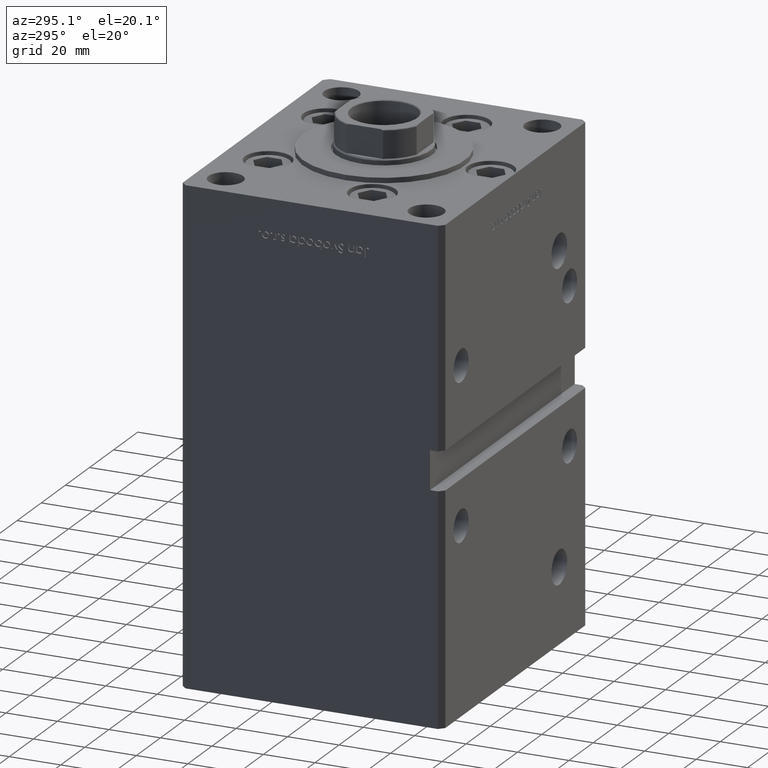
[diagram: clean part render]
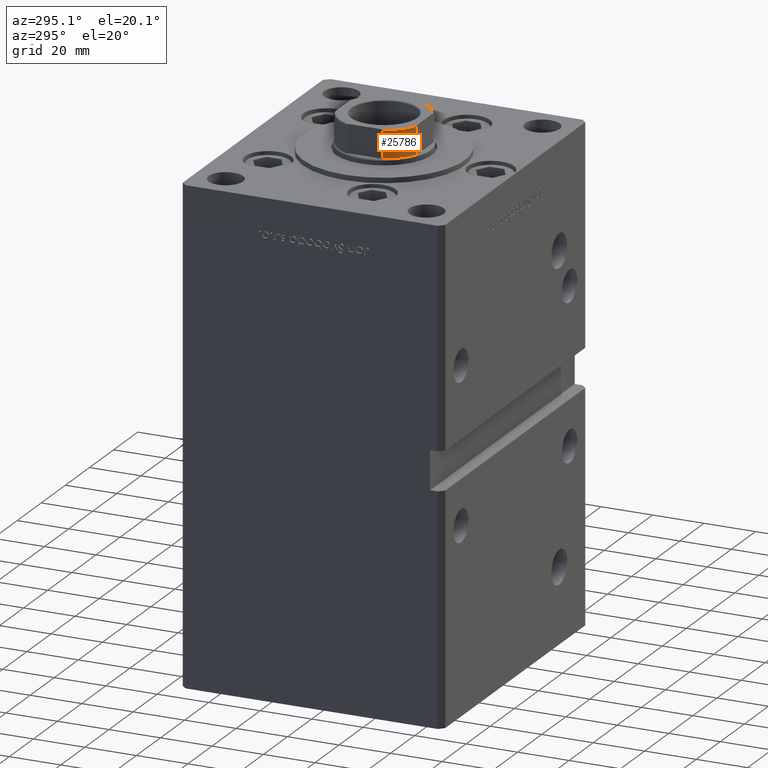
[diagram: same view with one face highlighted and labeled with its STEP entity id]
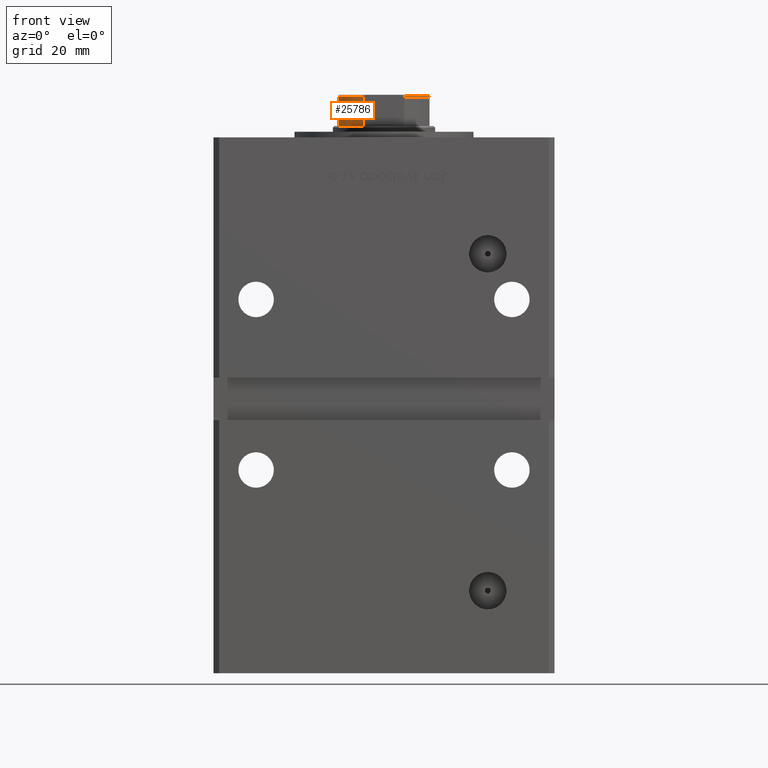
[diagram: same view with one face highlighted and labeled with its STEP entity id]
A machine part, auxiliary view. The second image highlights one B-rep face of the part: STEP entity #25786.
A second angle (front view) of the same face is appended — the face is thin or edge-on in the first view.
In plain terms, the highlighted cylindrical surface (partial cylindrical patch) has radius 17.5 mm, axis along (0, 0, 1).
Its self-contained STEP definition (entity closure, byte-faithful):
#2238 = CARTESIAN_POINT ( 'NONE',  ( -7.088723439378916247, -16.00000000000000000, 158.2500000000000284 ) ) ;
#4547 = CARTESIAN_POINT ( 'NONE',  ( -16.00000000000000355, -7.088723439378912694, -0.001000000000001000089 ) ) ;
#5608 = CARTESIAN_POINT ( 'NONE',  ( -7.088723439378916247, -16.00000000000000000, 168.7500000000000000 ) ) ;
#6193 = DIRECTION ( 'NONE',  ( 1.000000000000000000, 0.000000000000000000, 0.000000000000000000 ) ) ;
#6667 = ORIENTED_EDGE ( 'NONE', *, *, #21167, .T. ) ;
#7900 = AXIS2_PLACEMENT_3D ( 'NONE', #35103, #14756, #6193 ) ;
#10184 = EDGE_CURVE ( 'NONE', #50161, #20619, #30895, .T. ) ;
#10525 = DIRECTION ( 'NONE',  ( -0.000000000000000000, -0.000000000000000000, 1.000000000000000000 ) ) ;
#11211 = DIRECTION ( 'NONE',  ( 1.000000000000000000, 8.881784197001252323E-16, 0.000000000000000000 ) ) ;
#13822 = VERTEX_POINT ( 'NONE', #37248 ) ;
#14756 = DIRECTION ( 'NONE',  ( -0.000000000000000000, -0.000000000000000000, 1.000000000000000000 ) ) ;
#15364 = DIRECTION ( 'NONE',  ( 0.000000000000000000, 0.000000000000000000, 1.000000000000000000 ) ) ;
#16325 = AXIS2_PLACEMENT_3D ( 'NONE', #31706, #15364, #18587 ) ;
#18587 = DIRECTION ( 'NONE',  ( 1.000000000000000000, 0.000000000000000000, 0.000000000000000000 ) ) ;
#19020 = CIRCLE ( 'NONE', #47266, 17.50000000000000000 ) ;
#19827 = EDGE_CURVE ( 'NONE', #31770, #13822, #24891, .T. ) ;
#20619 = VERTEX_POINT ( 'NONE', #5608 ) ;
#21167 = EDGE_CURVE ( 'NONE', #31770, #50161, #42951, .T. ) ;
#22445 = CARTESIAN_POINT ( 'NONE',  ( -16.00000000000000355, -7.088723439378912694, 158.2500000000000284 ) ) ;
#22519 = FACE_OUTER_BOUND ( 'NONE', #41149, .T. ) ;
#24891 = LINE ( 'NONE', #4547, #45522 ) ;
#25786 = ADVANCED_FACE ( 'NONE', ( #22519 ), #27859, .T. ) ;
#26805 = EDGE_CURVE ( 'NONE', #20619, #13822, #19020, .T. ) ;
#27859 = CYLINDRICAL_SURFACE ( 'NONE', #7900, 17.50000000000000000 ) ;
#30895 = LINE ( 'NONE', #47243, #41822 ) ;
#31706 = CARTESIAN_POINT ( 'NONE',  ( 0.000000000000000000, 0.000000000000000000, 158.2500000000000000 ) ) ;
#31770 = VERTEX_POINT ( 'NONE', #22445 ) ;
#35103 = CARTESIAN_POINT ( 'NONE',  ( 0.000000000000000000, 0.000000000000000000, -0.001000000000001000089 ) ) ;
#36519 = ORIENTED_EDGE ( 'NONE', *, *, #10184, .T. ) ;
#37248 = CARTESIAN_POINT ( 'NONE',  ( -16.00000000000000355, -7.088723439378912694, 168.7500000000000000 ) ) ;
#38826 = CARTESIAN_POINT ( 'NONE',  ( 0.000000000000000000, 0.000000000000000000, 168.7500000000000000 ) ) ;
#39360 = DIRECTION ( 'NONE',  ( 0.000000000000000000, -0.000000000000000000, -1.000000000000000000 ) ) ;
#41149 = EDGE_LOOP ( 'NONE', ( #36519, #49117, #46442, #6667 ) ) ;
#41822 = VECTOR ( 'NONE', #10525, 1000.000000000000000 ) ;
#42951 = CIRCLE ( 'NONE', #16325, 17.50000000000001421 ) ;
#45522 = VECTOR ( 'NONE', #46589, 1000.000000000000000 ) ;
#46442 = ORIENTED_EDGE ( 'NONE', *, *, #19827, .F. ) ;
#46589 = DIRECTION ( 'NONE',  ( -0.000000000000000000, -0.000000000000000000, 1.000000000000000000 ) ) ;
#47243 = CARTESIAN_POINT ( 'NONE',  ( -7.088723439378916247, -16.00000000000000000, -0.001000000000001000089 ) ) ;
#47266 = AXIS2_PLACEMENT_3D ( 'NONE', #38826, #39360, #11211 ) ;
#49117 = ORIENTED_EDGE ( 'NONE', *, *, #26805, .T. ) ;
#50161 = VERTEX_POINT ( 'NONE', #2238 ) ;